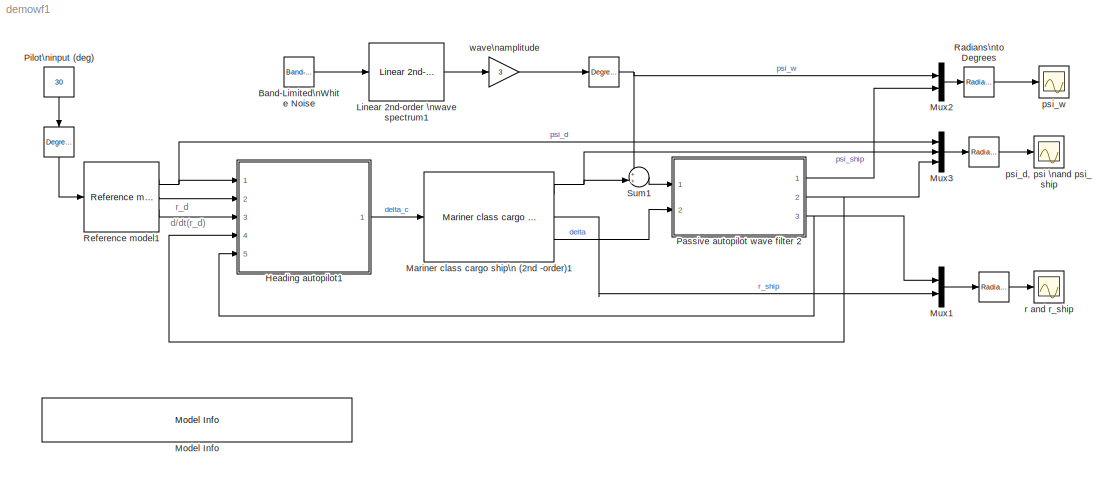
MODEL demowf1
KIND model
BLOCK [Reference]    REF=simulink_extras/Transformations/Radians\nto Degrees
  Ports = [1, 1]
  ShowPortLabels = on
  SourceBlock = simulink_extras/Transformations/Radians\nto Degrees
  SourceType = RadiansToDegrees
BLOCK [Reference]     REF=simulink_extras/Transformations/Radians\nto Degrees
  Ports = [1, 1]
  ShowPortLabels = on
  SourceBlock = simulink_extras/Transformations/Radians\nto Degrees
  SourceType = RadiansToDegrees
BLOCK [Reference]      REF=simulink_extras/Transformations/Degrees to\nRadians
  Ports = [1, 1]
  ShowPortLabels = on
  SourceBlock = simulink_extras/Transformations/Degrees to\nRadians
  SourceType = DegreesToRadians
BLOCK [Reference]        REF=simulink_extras/Transformations/Degrees to\nRadians
  Ports = [1, 1]
  ShowPortLabels = on
  SourceBlock = simulink_extras/Transformations/Degrees to\nRadians
  SourceType = DegreesToRadians
BLOCK [Reference] Band-Limited\nWhite Noise  REF=simulink/Sources/Band-Limited\nWhite Noise
  Cov = [1]
  Ports = [0, 1]
  ShowPortLabels = on
  SourceBlock = simulink/Sources/Band-Limited\nWhite Noise
  SourceType = Band-Limited White Noise.
  Ts = 0.1
  VectorParams1D = on
  seed = [23341]
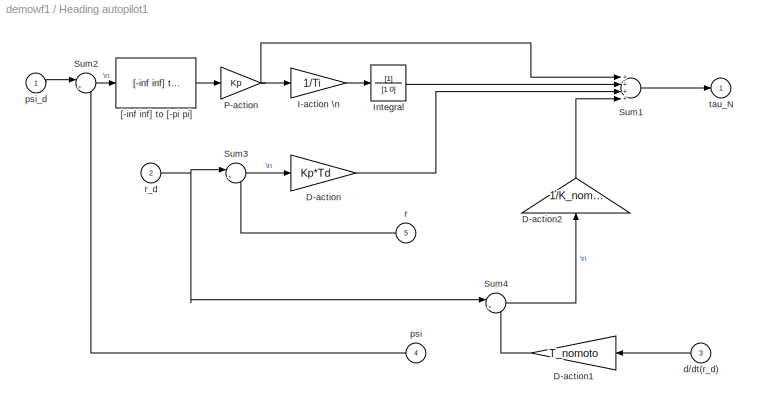
BLOCK [SubSystem] Heading autopilot1
  AncestorBlock = marine_gnc/Control/Autopilots/Heading autopilot
  MaskCallbackString = ||||
  MaskDescription = PID Autopilot with reference feedforward.
  MaskDisplay = disp('PID\\n tracking\\n controller')\n
  MaskEnableString = on,on,on,on,on
  MaskHelp = INPUTS: (1)  desired position, (2) desired velocity, (3) desired acceleration, (4) heading angle, (5) heading rate: OUTPUTS: (1) rudder angle
  MaskIconFrame = on
  MaskIconOpaque = off
  MaskIconRotate = none
  MaskIconUnits = autoscale
  MaskPromptString = Nomoto Time Constant: T|Nomoto gain: K|Proportional Gain: Kp|Derivative Time: Td|Integral Time: Ti
  MaskStyleString = edit,edit,edit,edit,edit
  MaskTabNameString = ,,,,
  MaskToolTipString = on,on,on,on,on
  MaskTunableValueString = on,on,on,on,on
  MaskType = Course Autopilot
  MaskValueString = 107.3|0.185|0.185|50|100
  MaskVarAliasString = ,,,,
  MaskVariables = T_nomoto=@1;K_nomoto=@2;Kp=@3;Td=@4;Ti=@5;
  MaskVisibilityString = on,on,on,on,on
  MinAlgLoopOccurrences = off
  Ports = [5, 1]
  RTWSystemCode = Auto
  TreatAsAtomicUnit = off
BLOCK [Gain] Heading autopilot1/D-action
  Gain = Kp*Td
BLOCK [Gain] Heading autopilot1/D-action1
  Gain = T_nomoto
BLOCK [Gain] Heading autopilot1/D-action2
  Gain = 1/K_nomoto
BLOCK [Gain] Heading autopilot1/I-action  \n
  Gain = 1/Ti
BLOCK [TransferFcn] Heading autopilot1/Integral
  Denominator = [1 0]
BLOCK [Gain] Heading autopilot1/P-action
  Gain = Kp
BLOCK [Sum] Heading autopilot1/Sum1
  Inputs = ++++
  Ports = [4, 1]
BLOCK [Sum] Heading autopilot1/Sum2
  IconShape = round
  Inputs = |+-
  Ports = [2, 1]
BLOCK [Sum] Heading autopilot1/Sum3
  IconShape = round
  Inputs = |+-
  Ports = [2, 1]
BLOCK [Sum] Heading autopilot1/Sum4
  IconShape = round
  Inputs = |++
  Ports = [2, 1]
BLOCK [Reference] Heading autopilot1/[-inf inf] to [-pi pi]  REF=marine_gnc/Utilities/Math Operations/[-inf inf] to [-pi pi]  (lib defined in mdl_10d96c221ba8, mdl_45f1105420c6)
  Ports = [1, 1]
  ShowPortLabels = on
  SourceBlock = marine_gnc/Utilities/Math Operations/[-inf inf] to [-pi pi]
  SourceType = [-inf inf] to [-pi pi]
BLOCK [Inport] Heading autopilot1/d//dt(r_d)
  IconDisplay = Port number
  LatchInput = off
  Port = 3
BLOCK [Inport] Heading autopilot1/psi
  IconDisplay = Port number
  LatchInput = off
  Port = 4
BLOCK [Inport] Heading autopilot1/psi_d
  IconDisplay = Port number
  LatchInput = off
  Port = 1
BLOCK [Inport] Heading autopilot1/r
  IconDisplay = Port number
  LatchInput = off
  Port = 5
BLOCK [Inport] Heading autopilot1/r_d
  IconDisplay = Port number
  LatchInput = off
  Port = 2
BLOCK [Outport] Heading autopilot1/tau_N
  BusOutputAsStruct = off
  IconDisplay = Port number
  InitialOutput = 0
BLOCK [Reference] Linear 2nd-order \nwave spectrum1  REF=marine_gnc/Environment/Waves/Linear 2nd-order \nwave spectrum  (lib defined in mdl_10d96c221ba8, mdl_45f1105420c6)
  Ports = [1, 1]
  ShowPortLabels = on
  SourceBlock = marine_gnc/Environment/Waves/Linear 2nd-order \nwave spectrum
  lambda = 0.1
  sigma = .5
  w_0 = 1.2
BLOCK [Reference] Mariner class cargo ship\n (2nd -order)1  REF=marine_gnc/Examples/Vessels/Mariner class cargo ship\n (2nd -order)  (lib defined in mdl_10d96c221ba8, mdl_45f1105420c6)
  K = 0.185
  Ports = [1, 3]
  ShowPortLabels = on
  SourceBlock = marine_gnc/Examples/Vessels/Mariner class cargo ship\n (2nd -order)
  SourceType = Container ship (2nd-order model)
  T1 = 118
  T2 = 7.8
  T3 = 18.5
  delta_max = 20*(pi/180)
  rate_max = 5*(pi/180)
BLOCK [Reference] Model Info  REF=simulink/Model-Wide\nUtilities/Model Info
  BlockCM = None
  DisplayStringWithTags = Autopilot demo using only compass measurements\n%<Creator>Author: Thor I. Fossen\n%<LastModificationDate>
  Frame = on
  HorizontalTextAlignment = Left
  InitialBlockCM = None
  LeftAlignmentValue = 0.02
  MaskDisplayString = Autopilot demo using only compass measurements\\nAuthor: Thor I. Fossen\\n16-Mar-2005 12:49:22
  Ports = []
  ShowPortLabels = on
  SourceBlock = simulink/Model-Wide\nUtilities/Model Info
  SourceBlockDiagram = demowf1
  SourceType = CMBlock
  TagMaxNumber = 20
BLOCK [Mux] Mux1
  DisplayOption = bar
  Inputs = 2
  Ports = [2, 1]
BLOCK [Mux] Mux2
  DisplayOption = bar
  Inputs = 2
  Ports = [2, 1]
BLOCK [Mux] Mux3
  DisplayOption = bar
  Inputs = 3
  Ports = [3, 1]
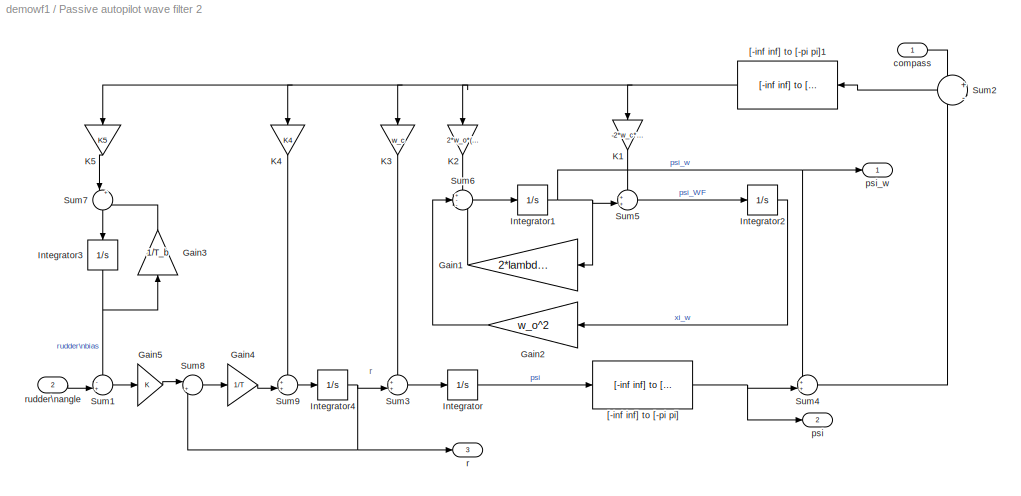
BLOCK [SubSystem] Passive autopilot wave filter 2
  AncestorBlock = marine_gnc/Navigation/Observers/Passive autopilot wave filter 1
  MaskCallbackString = |||||||
  MaskDisplay = disp('Only\\n Compass')
  MaskEnableString = on,on,on,on,on,on,on,on
  MaskIconFrame = on
  MaskIconOpaque = off
  MaskIconRotate = none
  MaskIconUnits = autoscale
  MaskPromptString = Relative damping ratio of wave spectrum: lambda|Peak frequency of wave spectrum: w_o (rad/s)|Yaw rate observer gain: K4|Bias observer gain: K5|Filter cut-off frequency: w_c (rad/s)|Nomoto time constant: T (s)|Nomoto gain: K (1/s)|Rudder bias time constant: T_b (s)
  MaskStyleString = edit,edit,edit,edit,edit,edit,edit,edit
  MaskTabNameString = ,,,,,,,
  MaskToolTipString = on,on,on,on,on,on,on,on
  MaskTunableValueString = on,on,on,on,on,on,on,on
  MaskType = wave spectrum damping ratio
  MaskValueString = 0.1|1.2|0.1|0.01|1.3|107.3|0.185|100
  MaskVarAliasString = ,,,,,,,
  MaskVariables = lambda=@1;w_o=@2;K4=@3;K5=@4;w_c=@5;T=@6;K=@7;T_b=@8;
  MaskVisibilityString = on,on,on,on,on,on,on,on
  MinAlgLoopOccurrences = off
  Ports = [2, 3]
  RTWSystemCode = Auto
  TreatAsAtomicUnit = off
BLOCK [Gain] Passive autopilot wave filter 2/Gain1
  Gain = 2*lambda*w_o
BLOCK [Gain] Passive autopilot wave filter 2/Gain2
  Gain = w_o^2
BLOCK [Gain] Passive autopilot wave filter 2/Gain3
  Gain = 1/T_b
BLOCK [Gain] Passive autopilot wave filter 2/Gain4
  Gain = 1/T
BLOCK [Gain] Passive autopilot wave filter 2/Gain5
  Gain = K
BLOCK [Integrator] Passive autopilot wave filter 2/Integrator
  IgnoreLimit = off
  Ports = [1, 1]
BLOCK [Integrator] Passive autopilot wave filter 2/Integrator1
  IgnoreLimit = off
  Ports = [1, 1]
BLOCK [Integrator] Passive autopilot wave filter 2/Integrator2
  IgnoreLimit = off
  Ports = [1, 1]
BLOCK [Integrator] Passive autopilot wave filter 2/Integrator3
  IgnoreLimit = off
  Ports = [1, 1]
BLOCK [Integrator] Passive autopilot wave filter 2/Integrator4
  IgnoreLimit = off
  Ports = [1, 1]
BLOCK [Gain] Passive autopilot wave filter 2/K1
  Gain = -2*w_c*(1.0-lambda)/w_o
BLOCK [Gain] Passive autopilot wave filter 2/K2
  Gain = 2*w_o*(1.0-lambda)
BLOCK [Gain] Passive autopilot wave filter 2/K3
  Gain = w_c
BLOCK [Gain] Passive autopilot wave filter 2/K4
  Gain = K4
BLOCK [Gain] Passive autopilot wave filter 2/K5
  Gain = K5
BLOCK [Sum] Passive autopilot wave filter 2/Sum1
  IconShape = round
  Inputs = -+|
  Ports = [2, 1]
BLOCK [Sum] Passive autopilot wave filter 2/Sum2
  IconShape = round
  Inputs = +|-
  Ports = [2, 1]
BLOCK [Sum] Passive autopilot wave filter 2/Sum3
  IconShape = round
  Inputs = ++|
  Ports = [2, 1]
BLOCK [Sum] Passive autopilot wave filter 2/Sum4
  IconShape = round
  Inputs = ++|
  Ports = [2, 1]
BLOCK [Sum] Passive autopilot wave filter 2/Sum5
  IconShape = round
  Inputs = ++|
  Ports = [2, 1]
BLOCK [Sum] Passive autopilot wave filter 2/Sum6
  IconShape = round
  Inputs = +--
  Ports = [3, 1]
BLOCK [Sum] Passive autopilot wave filter 2/Sum7
  IconShape = round
  Inputs = |+-
  Ports = [2, 1]
BLOCK [Sum] Passive autopilot wave filter 2/Sum8
  IconShape = round
  Inputs = |+-
  Ports = [2, 1]
BLOCK [Sum] Passive autopilot wave filter 2/Sum9
  IconShape = round
  Inputs = ++|
  Ports = [2, 1]
BLOCK [Reference] Passive autopilot wave filter 2/[-inf inf] to [-pi pi]  REF=marine_gnc/Utilities/Math Operations/[-inf inf] to [-pi pi]  (lib defined in mdl_10d96c221ba8, mdl_45f1105420c6)
  Ports = [1, 1]
  ShowPortLabels = on
  SourceBlock = marine_gnc/Utilities/Math Operations/[-inf inf] to [-pi pi]
  SourceType = [-inf inf] to [-pi pi]
BLOCK [Reference] Passive autopilot wave filter 2/[-inf inf] to [-pi pi]1  REF=marine_gnc/Utilities/Math Operations/[-inf inf] to [-pi pi]  (lib defined in mdl_10d96c221ba8, mdl_45f1105420c6)
  Ports = [1, 1]
  ShowPortLabels = on
  SourceBlock = marine_gnc/Utilities/Math Operations/[-inf inf] to [-pi pi]
  SourceType = [-inf inf] to [-pi pi]
BLOCK [Inport] Passive autopilot wave filter 2/compass
  IconDisplay = Port number
  LatchInput = off
  Port = 1
BLOCK [Outport] Passive autopilot wave filter 2/psi
  BusOutputAsStruct = off
  IconDisplay = Port number
  Port = 2
BLOCK [Outport] Passive autopilot wave filter 2/psi_w
  BusOutputAsStruct = off
  IconDisplay = Port number
BLOCK [Outport] Passive autopilot wave filter 2/r
  BusOutputAsStruct = off
  IconDisplay = Port number
  Port = 3
BLOCK [Inport] Passive autopilot wave filter 2/rudder\nangle
  IconDisplay = Port number
  LatchInput = off
  Port = 2
BLOCK [Constant] Pilot\ninput (deg)
  Value = 30
BLOCK [Reference] Radians\nto Degrees    REF=simulink_extras/Transformations/Radians\nto Degrees
  Ports = [1, 1]
  ShowPortLabels = on
  SourceBlock = simulink_extras/Transformations/Radians\nto Degrees
  SourceType = RadiansToDegrees
BLOCK [Reference] Reference model1  REF=marine_gnc/Guidance/Reference model  (lib defined in mdl_10d96c221ba8, mdl_45f1105420c6)
  Ports = [1, 3]
  ShowPortLabels = on
  SourceBlock = marine_gnc/Guidance/Reference model
  SourceType = 3rd-order reference model
  v_max = 1.0
  w_d = 0.1
  zeta_d = 1.0
BLOCK [Sum] Sum1
  IconShape = round
  Inputs = ++|
  Ports = [2, 1]
BLOCK [Scope] psi_d, psi \nand psi_ship
  DataFormat = StructureWithTime
  Decimation = 10
  NumInputPorts = 1
  Ports = [1]
  SaveName = ScopeData2
  TimeRange = 100
  YMax = 40
  YMin = -10
BLOCK [Scope] psi_w
  DataFormat = StructureWithTime
  Decimation = 10
  NumInputPorts = 1
  Ports = [1]
  TimeRange = 100
  YMax = 4
  YMin = -4
  ZoomMode = xonly
BLOCK [Scope] r and r_ship
  DataFormat = StructureWithTime
  Decimation = 10
  NumInputPorts = 1
  Ports = [1]
  SaveName = ScopeData3
  TimeRange = 100
  YMax = 1
  YMin = -0.5
BLOCK [Gain] wave\namplitude
  Gain = 3
ANNOTATION (root): d/dt(r_d)
ANNOTATION (root): r_d
ANNOTATION Passive autopilot wave filter 2: r
LINE      :1 -> Reference model1:1
NET    :1 -> Mux2:1, Sum1:1
LINE   :1 -> r and r_ship:1
LINE  :1 -> psi_d, psi \nand psi_ship:1
LINE Band-Limited\nWhite Noise:1 -> Linear 2nd-order \nwave spectrum1:1
LINE Heading autopilot1/D-action1:1 -> Heading autopilot1/Sum4:2
LINE Heading autopilot1/D-action2:1 -> Heading autopilot1/Sum1:4
LINE Heading autopilot1/D-action:1 -> Heading autopilot1/Sum1:3
LINE Heading autopilot1/I-action  \n:1 -> Heading autopilot1/Integral:1
LINE Heading autopilot1/Integral:1 -> Heading autopilot1/Sum1:2
NET Heading autopilot1/P-action:1 -> Heading autopilot1/I-action  \n:1, Heading autopilot1/Sum1:1
LINE Heading autopilot1/Sum1:1 -> Heading autopilot1/tau_N:1
LINE Heading autopilot1/Sum2:1 -> Heading autopilot1/[-inf inf] to [-pi pi]:1
LINE Heading autopilot1/Sum3:1 -> Heading autopilot1/D-action:1
LINE Heading autopilot1/Sum4:1 -> Heading autopilot1/D-action2:1
LINE Heading autopilot1/[-inf inf] to [-pi pi]:1 -> Heading autopilot1/P-action:1
LINE Heading autopilot1/d//dt(r_d):1 -> Heading autopilot1/D-action1:1
LINE Heading autopilot1/psi:1 -> Heading autopilot1/Sum2:2
LINE Heading autopilot1/psi_d:1 -> Heading autopilot1/Sum2:1
LINE Heading autopilot1/r:1 -> Heading autopilot1/Sum3:2
NET Heading autopilot1/r_d:1 -> Heading autopilot1/Sum3:1, Heading autopilot1/Sum4:1
LINE Heading autopilot1:1 -> Mariner class cargo ship\n (2nd -order)1:1
LINE Linear 2nd-order \nwave spectrum1:1 -> wave\namplitude:1
NET Mariner class cargo ship\n (2nd -order)1:1 -> Mux3:2, Sum1:2
LINE Mariner class cargo ship\n (2nd -order)1:2 -> Mux1:2
LINE Mariner class cargo ship\n (2nd -order)1:3 -> Passive autopilot wave filter 2:2
LINE Mux1:1 ->   :1
LINE Mux2:1 -> Radians\nto Degrees  :1
LINE Mux3:1 ->  :1
LINE Passive autopilot wave filter 2/Gain1:1 -> Passive autopilot wave filter 2/Sum6:3
LINE Passive autopilot wave filter 2/Gain2:1 -> Passive autopilot wave filter 2/Sum6:2
LINE Passive autopilot wave filter 2/Gain3:1 -> Passive autopilot wave filter 2/Sum7:2
LINE Passive autopilot wave filter 2/Gain4:1 -> Passive autopilot wave filter 2/Sum9:2
LINE Passive autopilot wave filter 2/Gain5:1 -> Passive autopilot wave filter 2/Sum8:1
NET Passive autopilot wave filter 2/Integrator1:1 -> Passive autopilot wave filter 2/Gain1:1, Passive autopilot wave filter 2/Sum4:1, Passive autopilot wave filter 2/Sum5:2, Passive autopilot wave filter 2/psi_w:1
LINE Passive autopilot wave filter 2/Integrator2:1 -> Passive autopilot wave filter 2/Gain2:1
NET Passive autopilot wave filter 2/Integrator3:1 -> Passive autopilot wave filter 2/Gain3:1, Passive autopilot wave filter 2/Sum1:1
NET Passive autopilot wave filter 2/Integrator4:1 -> Passive autopilot wave filter 2/Sum3:2, Passive autopilot wave filter 2/Sum8:2, Passive autopilot wave filter 2/r:1
LINE Passive autopilot wave filter 2/Integrator:1 -> Passive autopilot wave filter 2/[-inf inf] to [-pi pi]:1
LINE Passive autopilot wave filter 2/K1:1 -> Passive autopilot wave filter 2/Sum5:1
LINE Passive autopilot wave filter 2/K2:1 -> Passive autopilot wave filter 2/Sum6:1
LINE Passive autopilot wave filter 2/K3:1 -> Passive autopilot wave filter 2/Sum3:1
LINE Passive autopilot wave filter 2/K4:1 -> Passive autopilot wave filter 2/Sum9:1
LINE Passive autopilot wave filter 2/K5:1 -> Passive autopilot wave filter 2/Sum7:1
LINE Passive autopilot wave filter 2/Sum1:1 -> Passive autopilot wave filter 2/Gain5:1
LINE Passive autopilot wave filter 2/Sum2:1 -> Passive autopilot wave filter 2/[-inf inf] to [-pi pi]1:1
LINE Passive autopilot wave filter 2/Sum3:1 -> Passive autopilot wave filter 2/Integrator:1
LINE Passive autopilot wave filter 2/Sum4:1 -> Passive autopilot wave filter 2/Sum2:2
LINE Passive autopilot wave filter 2/Sum5:1 -> Passive autopilot wave filter 2/Integrator2:1
LINE Passive autopilot wave filter 2/Sum6:1 -> Passive autopilot wave filter 2/Integrator1:1
LINE Passive autopilot wave filter 2/Sum7:1 -> Passive autopilot wave filter 2/Integrator3:1
LINE Passive autopilot wave filter 2/Sum8:1 -> Passive autopilot wave filter 2/Gain4:1
LINE Passive autopilot wave filter 2/Sum9:1 -> Passive autopilot wave filter 2/Integrator4:1
NET Passive autopilot wave filter 2/[-inf inf] to [-pi pi]1:1 -> Passive autopilot wave filter 2/K1:1, Passive autopilot wave filter 2/K2:1, Passive autopilot wave filter 2/K3:1, Passive autopilot wave filter 2/K4:1, Passive autopilot wave filter 2/K5:1
NET Passive autopilot wave filter 2/[-inf inf] to [-pi pi]:1 -> Passive autopilot wave filter 2/Sum4:2, Passive autopilot wave filter 2/psi:1
LINE Passive autopilot wave filter 2/compass:1 -> Passive autopilot wave filter 2/Sum2:1
LINE Passive autopilot wave filter 2/rudder\nangle:1 -> Passive autopilot wave filter 2/Sum1:2
LINE Passive autopilot wave filter 2:1 -> Mux2:2
NET Passive autopilot wave filter 2:2 -> Heading autopilot1:4, Mux3:3
NET Passive autopilot wave filter 2:3 -> Heading autopilot1:5, Mux1:1
LINE Pilot\ninput (deg):1 ->      :1
LINE Radians\nto Degrees  :1 -> psi_w:1
NET Reference model1:1 -> Heading autopilot1:1, Mux3:1
LINE Reference model1:2 -> Heading autopilot1:2
LINE Reference model1:3 -> Heading autopilot1:3
LINE Sum1:1 -> Passive autopilot wave filter 2:1
LINE wave\namplitude:1 ->    :1
note: NET lines group one-source signal fan-out (src -> all destinations, sorted); 1:1 wires keep LINE
